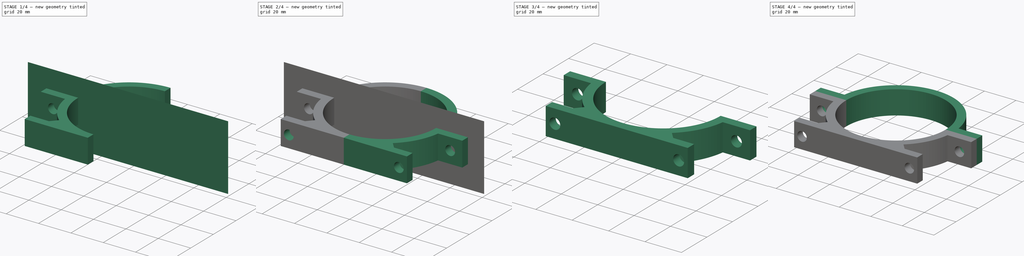
[diagram: build sequence overview — one tinted view per stage of 4, left to right]
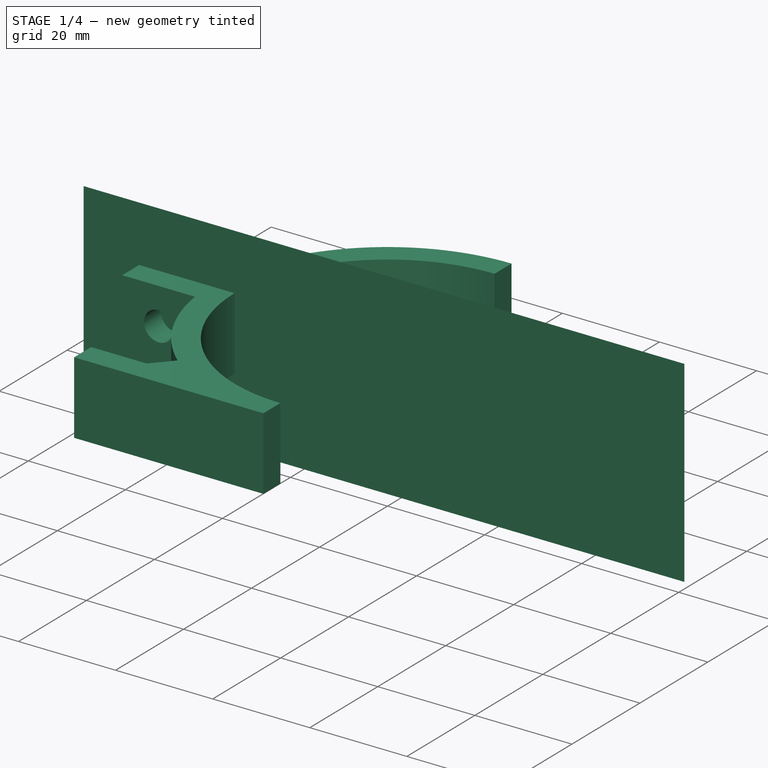
[diagram: stage 1 of 4 — iso view after this stage's code; geometry added in this stage tinted green]
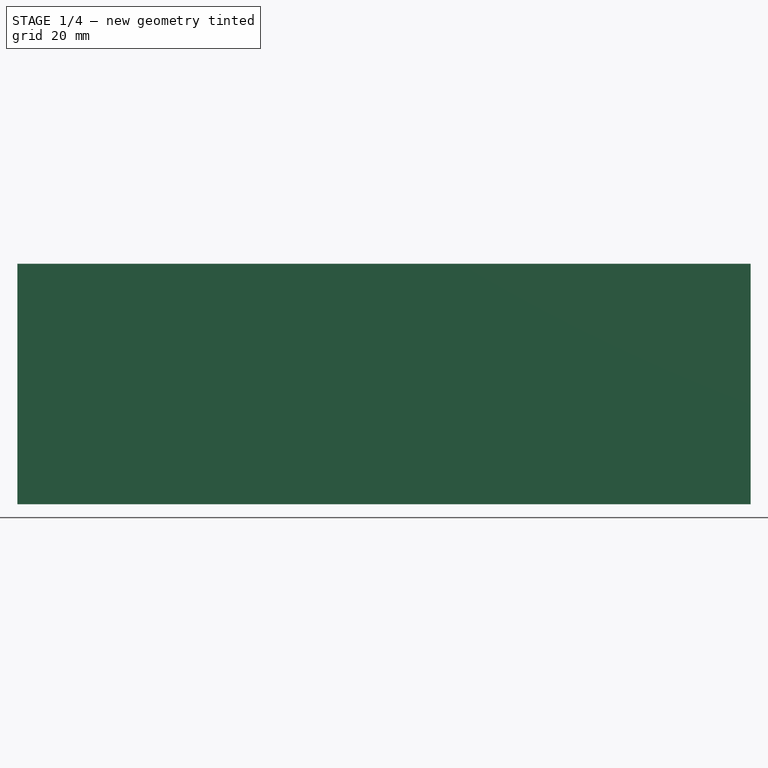
[diagram: stage 1 of 4 — front view after this stage's code; geometry added in this stage tinted green]
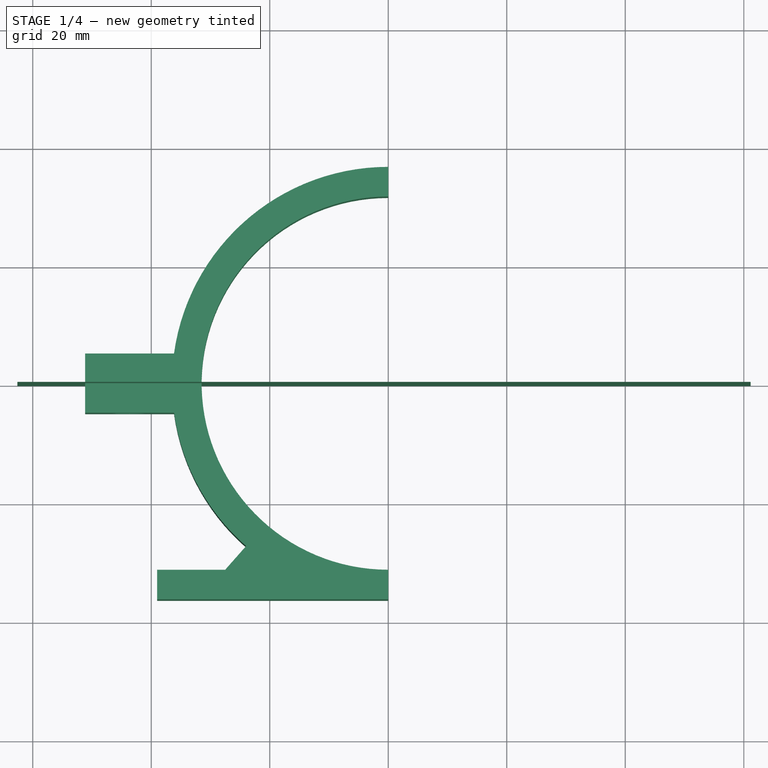
[diagram: stage 1 of 4 — top view after this stage's code; geometry added in this stage tinted green]
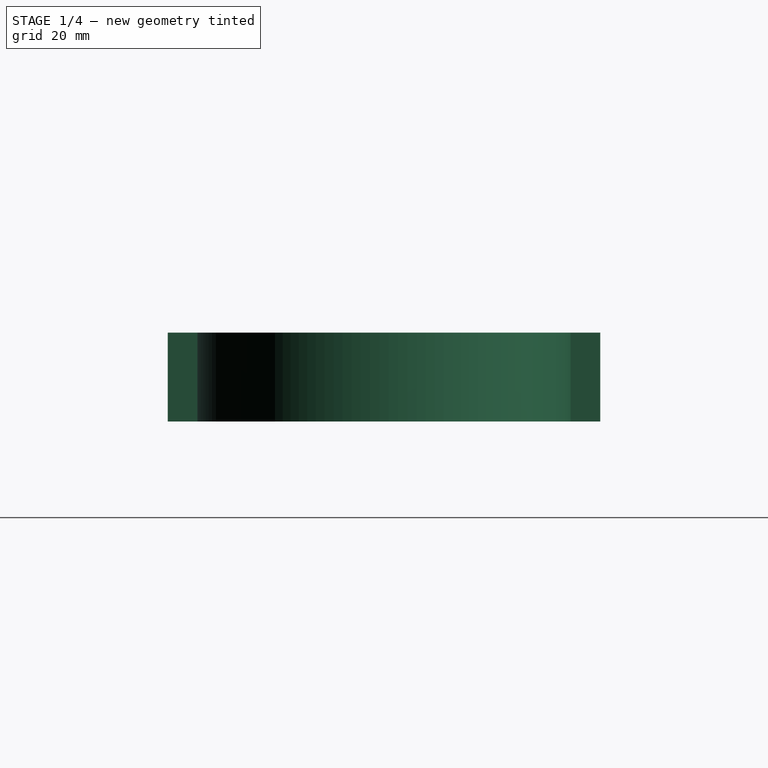
[diagram: stage 1 of 4 — right view after this stage's code; geometry added in this stage tinted green]
FCSTD DOCUMENT  (FreeCAD 0.19R24291 (Git))
Label: Dalekohled_2
License: All rights reserved
LicenseURL: http://en.wikipedia.org/wiki/All_rights_reserved
objects: Sketcher::SketchObject×5, Part::FeaturePython×5, App::Part×2, PartDesign::Pad×2, PartDesign::Hole×2, PartDesign::Body×2, Part::Mirroring×1, PartDesign::ShapeBinder×1, Part::MultiFuse×1, App::DocumentObjectGroup×1
note: 23 computed .brp shape members not serialized (recipe doc carries the construction recipe); baked Part::Feature solids carry a one-line shape summary decoded from their .brp

FEATURE [App::Part] Part  label="Tubus"
  Origin = -> Origin
FEATURE [Sketcher::SketchObject] Sketch  label="ProfilDrzaku"
  FullyConstrained = true
  sketch-geometry (13):
    g0: LineSegment StartX=-51.1559 StartY=5 StartZ=0 EndX=-36.1559 EndY=5 EndZ=0
    g1: LineSegment StartX=-51.1559 StartY=-5 StartZ=0 EndX=-51.1559 EndY=5 EndZ=0
    g2: LineSegment StartX=-5.8e-15 StartY=-36.5 StartZ=0 EndX=-39 EndY=-36.5 EndZ=0
    g3: LineSegment StartX=-39 StartY=-36.5 StartZ=0 EndX=-39 EndY=-31.5 EndZ=0
    g4: LineSegment StartX=-39 StartY=-31.5 StartZ=0 EndX=-27.52 EndY=-31.5 EndZ=0
    g5: LineSegment StartX=-5.8e-15 StartY=-31.5 StartZ=0 EndX=-5.8e-15 EndY=-36.5 EndZ=0
    g6: LineSegment StartX=-36.1559 StartY=-5 StartZ=0 EndX=-51.1559 EndY=-5 EndZ=0
    g7: ArcOfCircle CenterX=0 CenterY=0 CenterZ=0 NormalX=0 NormalY=0 NormalZ=1 AngleXU=0 Radius=36.5 StartAngle=3.27901 EndAngle=3.99509
    g8: LineSegment StartX=-23.9934 StartY=-27.5057 StartZ=0 EndX=-27.52 EndY=-31.5 EndZ=0
    g9: ArcOfCircle CenterX=0 CenterY=0 CenterZ=0 NormalX=0 NormalY=0 NormalZ=1 AngleXU=0 Radius=31.5 StartAngle=1.5708 EndAngle=4.71239
    g10: ArcOfCircle CenterX=0 CenterY=0 CenterZ=0 NormalX=0 NormalY=0 NormalZ=1 AngleXU=0 Radius=36.5 StartAngle=1.5708 EndAngle=3.00417
    g11: LineSegment StartX=1.9e-15 StartY=36.5 StartZ=0 EndX=1.9e-15 EndY=31.5 EndZ=0
    g12: LineSegment StartX=-5.8e-15 StartY=-31.5 StartZ=0 EndX=-5.8e-15 EndY=-36.5 EndZ=0
  constraints (37):
    c: Coincident(g6,g1)
    c: Coincident(g1,g0)
    c: Horizontal(g0)
    c: Coincident(g2,g3)
    c: Coincident(g3,g4)
    c: Coincident(g5,g2)
    c: Horizontal(g2)
    c: Horizontal(g4)
    c: Vertical(g3)
    c: Vertical(g5)
    c: DistanceY(g1,g1) = 10
    c: Perpendicular(g6,g1)
    c: Symmetric(g1,g0,g-1)
    c: DistanceY(g3,g3) = 5
    c: DistanceX(g2,g2) = 39
    c: Coincident(g7,g6)
    c: DistanceX(g6,g6) = 15
    c: Coincident(g4,g8)
    c: Coincident(g7,g8)
    c: Coincident(g9,g7)
    c: Coincident(g9,g5)
    c: Coincident(g10,g7)
    c: Coincident(g10,g0)
    c: Coincident(g11,g10)
    c: Coincident(g11,g9)
    c: Coincident(g12,g5)
    c: Coincident(g12,g2)
    c: Radius(g9) = 31.5
    c: Radius(g10) = 36.5
    c: DistanceY(g5,g5) = 5
    c: Perpendicular(g9,g11)
    c: Perpendicular(g9,g5)
    c: Vertical(g11)
    c: DistanceX(g4,g4) = 11.48
    c: Coincident(g7,g-1)
    c: Radius(g7) = 36.5
    c: DistanceX(g7) = -23.9934
FEATURE [PartDesign::Pad] Pad
  Direction = (1,1,1)
  Length = 15
  Length2 = 100
  Profile = -> Sketch
  Type = 0
FEATURE [Sketcher::SketchObject] Sketch001
  ExternalGeometry = -> [Pad]
  FullyConstrained = true
  MapMode = 5
  Placement = pos=(0,5,0) rot=(0,0.707107,0.707107;3.14159rad)
  Support = -> [Pad]
  sketch-geometry (1):
    g0: Circle CenterX=43.6559 CenterY=7.5 CenterZ=0 NormalX=0 NormalY=0 NormalZ=1 AngleXU=0 Radius=2.1
  constraints (3):
    c: Radius(g0) = 2.1
    c: Distance(g0,g-3) = 7.5
    c: Distance(g0,g-4) = 7.5
FEATURE [PartDesign::Hole] Hole
  BaseFeature = -> Pad
  Depth = 25
  DepthType = 0
  Diameter = 6
  DrillForDepth = false
  DrillPoint = 1
  DrillPointAngle = 118
  HoleCutCountersinkAngle = 90
  HoleCutCustomValues = false
  HoleCutDepth = 0
  HoleCutDiameter = 6.1
  HoleCutType = 0
  ModelActualThread = false
  Profile = -> Sketch001
  Tapered = false
  TaperedAngle = 90
  ThreadAngle = 0
  ThreadClass = 0
  ThreadCutOffInner = 0
  ThreadCutOffOuter = 0
  ThreadDirection = 0
  ThreadFit = 0
  ThreadPitch = 0
  ThreadSize = 0
  ThreadType = 0
  Threaded = false
FEATURE [Sketcher::SketchObject] Sketch004
  FullyConstrained = false
  MapMode = 5
  Placement = pos=(0,0,0) rot=(1,0,0;1.5708rad)
  Support = -> [XZ_Plane003]
  sketch-geometry (4):
    g0: LineSegment StartX=-62.5992 StartY=26.6197 StartZ=0 EndX=61.1613 EndY=26.6197 EndZ=0
    g1: LineSegment StartX=61.1613 StartY=26.6197 StartZ=0 EndX=61.1613 EndY=-13.9769 EndZ=0
    g2: LineSegment StartX=61.1613 StartY=-13.9769 StartZ=0 EndX=-62.5992 EndY=-13.9769 EndZ=0
    g3: LineSegment StartX=-62.5992 StartY=-13.9769 StartZ=0 EndX=-62.5992 EndY=26.6197 EndZ=0
  constraints (8):
    c: Coincident(g0,g1)
    c: Coincident(g1,g2)
    c: Coincident(g2,g3)
    c: Coincident(g3,g0)
    c: Horizontal(g0)
    c: Horizontal(g2)
    c: Vertical(g1)
    c: Vertical(g3)
FEATURE [PartDesign::Pad] Pad001
  Direction = (1,1,1)
  Length = 0.0001
  Length2 = 100
  Placement = pos=(0,0,0) rot=(1,0,0;1.5708rad)
  Profile = -> Sketch004
  Type = 0
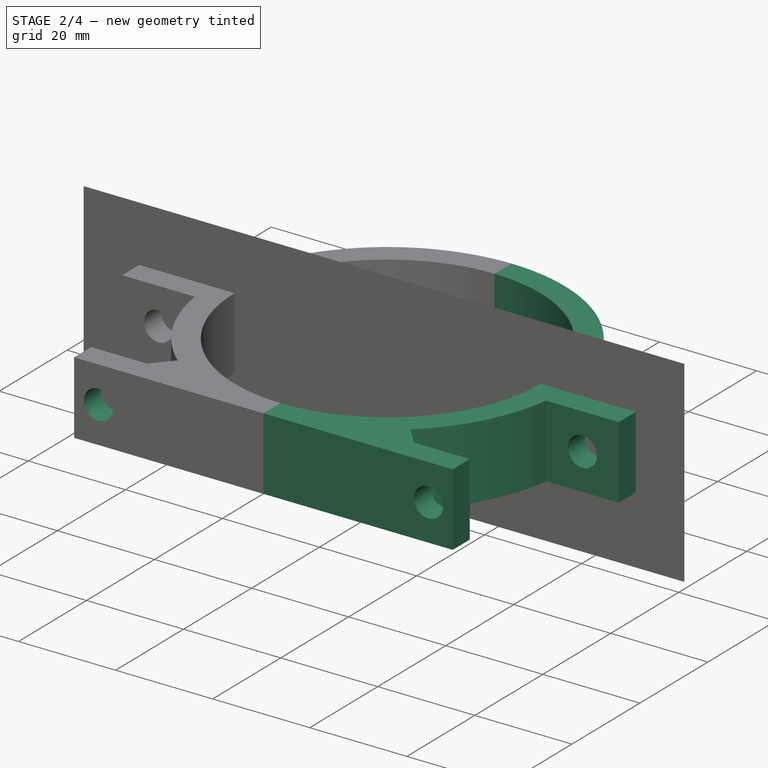
[diagram: stage 2 of 4 — iso view after this stage's code; geometry added in this stage tinted green]
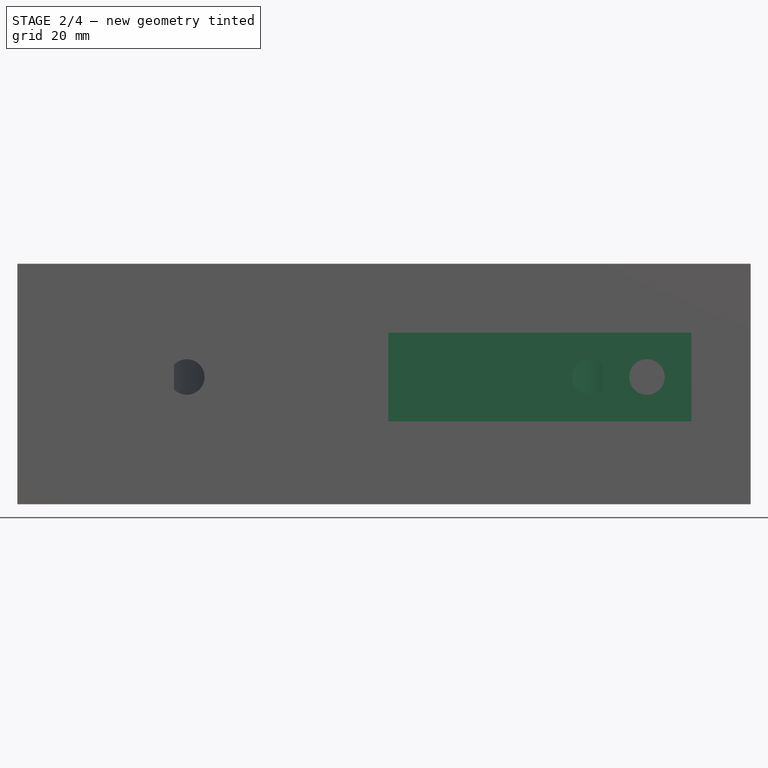
[diagram: stage 2 of 4 — front view after this stage's code; geometry added in this stage tinted green]
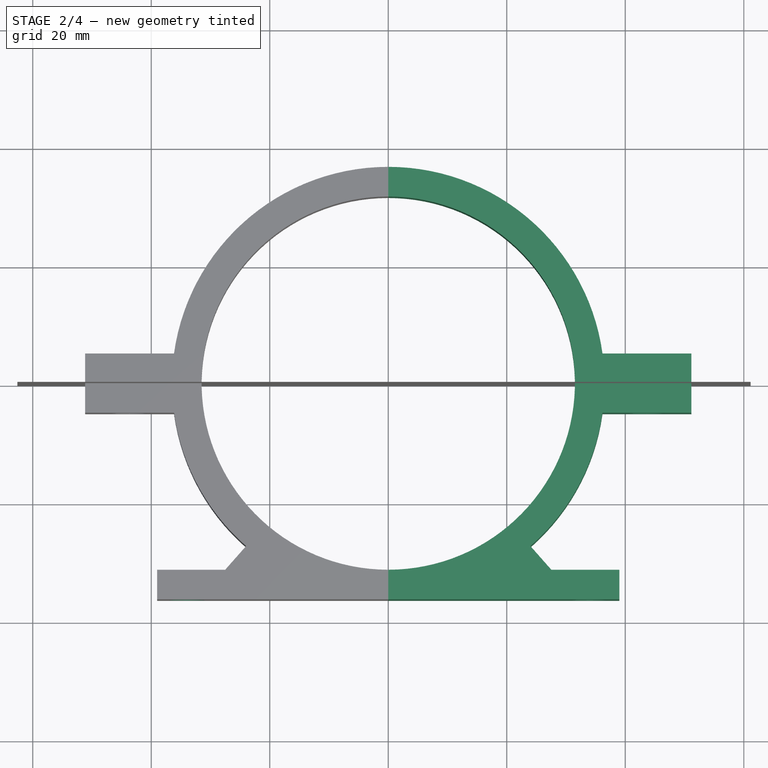
[diagram: stage 2 of 4 — top view after this stage's code; geometry added in this stage tinted green]
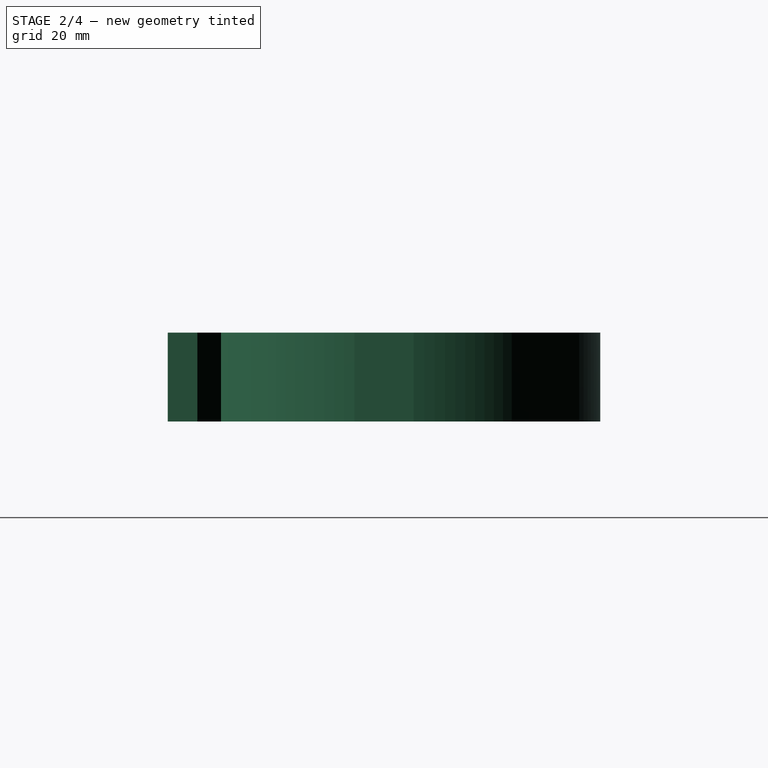
[diagram: stage 2 of 4 — right view after this stage's code; geometry added in this stage tinted green]
FEATURE [Sketcher::SketchObject] Sketch002
  ExternalGeometry = -> [Hole]
  FullyConstrained = true
  MapMode = 5
  Placement = pos=(0,-36.5,0) rot=(1,0,0;1.5708rad)
  Support = -> [Hole]
  sketch-geometry (1):
    g0: Circle CenterX=-34 CenterY=7.5 CenterZ=0 NormalX=0 NormalY=0 NormalZ=1 AngleXU=0 Radius=2.2
  constraints (3):
    c: Radius(g0) = 2.2
    c: Distance(g0,g-3) = 7.5
    c: Distance(g0,g-4) = 5
FEATURE [PartDesign::Hole] Hole001
  BaseFeature = -> Hole
  Depth = 17
  DepthType = 0
  Diameter = 6
  DrillForDepth = false
  DrillPoint = 1
  DrillPointAngle = 118
  HoleCutCountersinkAngle = 90
  HoleCutCustomValues = false
  HoleCutDepth = 0
  HoleCutDiameter = 6.1
  HoleCutType = 0
  ModelActualThread = false
  Profile = -> Sketch002
  Tapered = false
  TaperedAngle = 90
  ThreadAngle = 0
  ThreadClass = 0
  ThreadCutOffInner = 0
  ThreadCutOffOuter = 0
  ThreadDirection = 0
  ThreadFit = 0
  ThreadPitch = 0
  ThreadSize = 0
  ThreadType = 0
  Threaded = false
FEATURE [Part::Mirroring] Part__Mirroring  label="Hole001 (Mirror #1)"
  Base = (0,0,0)
  Normal = (1,0,0)
  Source = -> Hole001
FEATURE [Sketcher::SketchObject] Sketch003
  FullyConstrained = true
  MapMode = 5
  Placement = pos=(0,5,0) rot=(0,0.707107,0.707107;3.14159rad)
FEATURE [PartDesign::ShapeBinder] CopyFusion
  TraceSupport = false
FEATURE [PartDesign::Body] Body
  Group = -> [Sketch,Pad,Sketch001,Hole,Sketch002,Hole001,Sketch003,CopyFusion]
  Origin = -> Origin002
  Tip = -> Hole001
FEATURE [App::Part] Part001  label="Holder"
  Group = -> [Body]
  Origin = -> Origin001
FEATURE [Part::MultiFuse] Fusion
  Shapes = -> [Part__Mirroring,Part001]
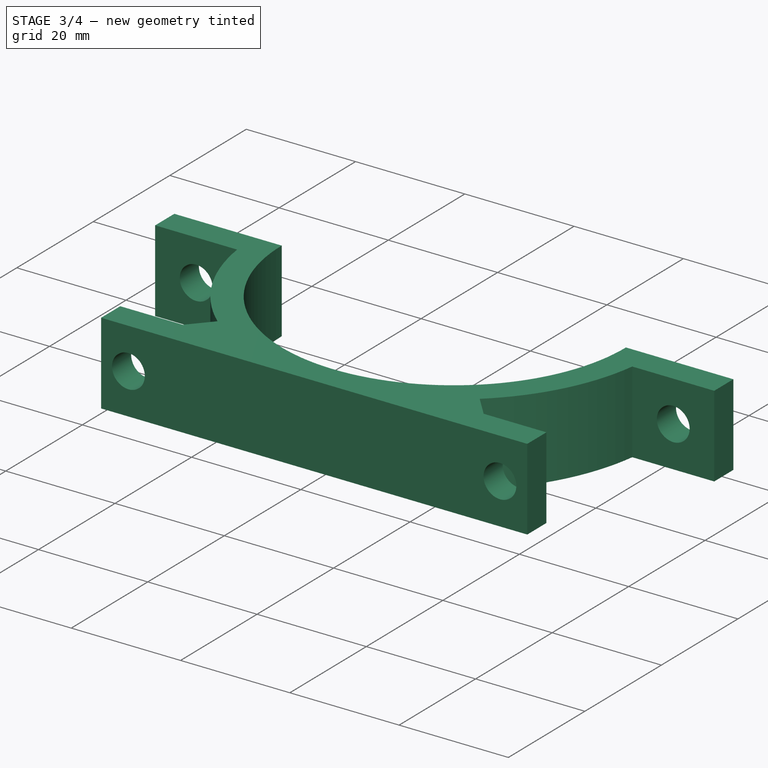
[diagram: stage 3 of 4 — iso view after this stage's code; geometry added in this stage tinted green]
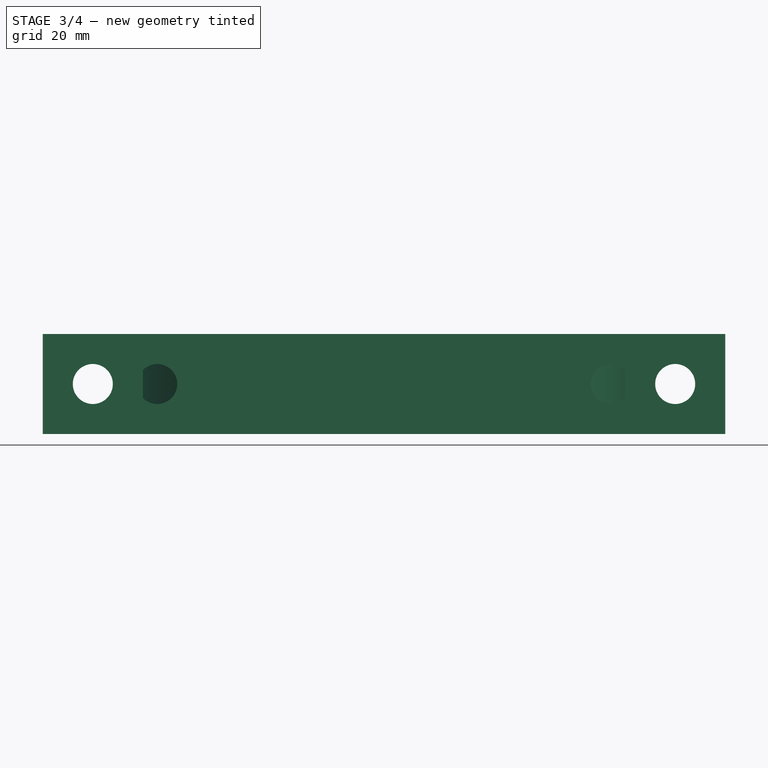
[diagram: stage 3 of 4 — front view after this stage's code; geometry added in this stage tinted green]
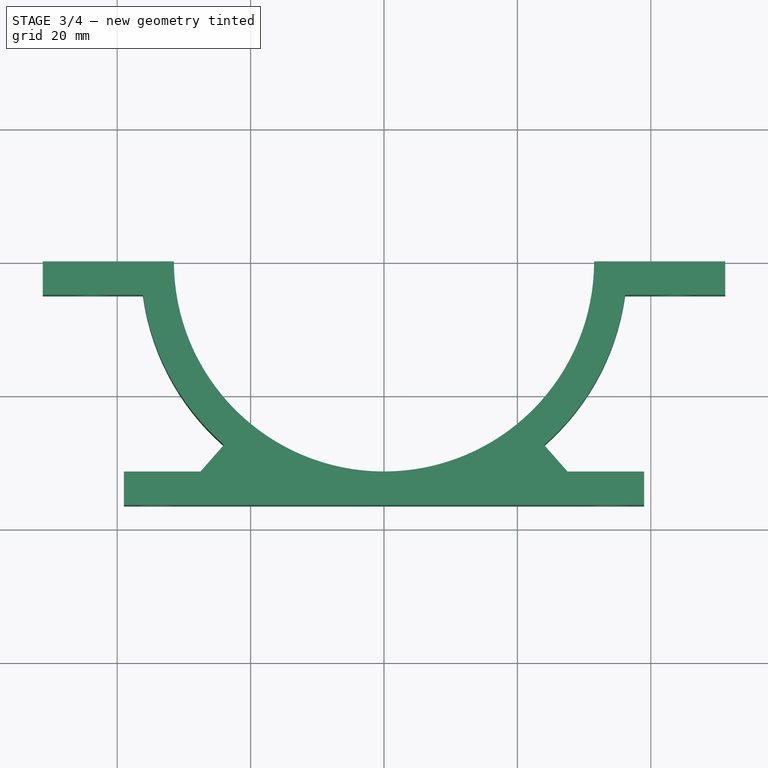
[diagram: stage 3 of 4 — top view after this stage's code; geometry added in this stage tinted green]
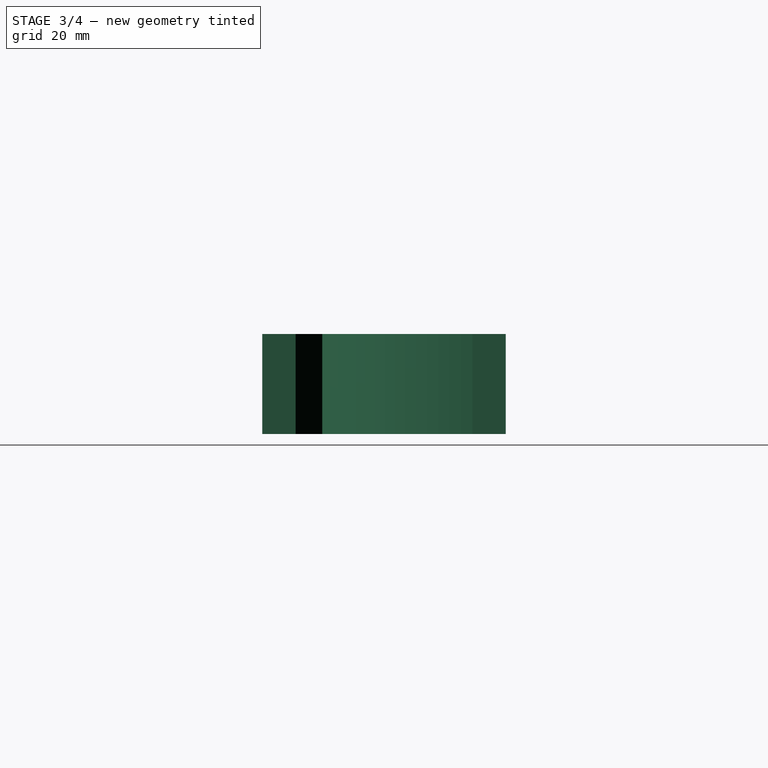
[diagram: stage 3 of 4 — right view after this stage's code; geometry added in this stage tinted green]
FEATURE [PartDesign::Body] Body001  label="RezaciRovina"
  Group = -> [Sketch004,Pad001]
  Origin = -> Origin003
  Tip = -> Pad001
FEATURE [Part::FeaturePython] Slice  # WARN: FeaturePython — macro-defined, semantics opaque (R4)
  Base = -> Fusion
  Mode = 1
  Tolerance = 0
  Tools = -> [Body001]
FEATURE [Part::FeaturePython] Slice_child3  label="SpodniDil"  # WARN: FeaturePython — macro-defined, semantics opaque (R4)
  Base = -> Slice
  FilterType = 1
  Invert = false
  OverrideMaxVal = 0
  WindowFrom = 80
  WindowTo = 100
  items = 3
FEATURE [App::DocumentObjectGroup] GrExplode_Slice  label="Exploded Slice"
  Group = -> [Slice_child0,Slice_child1,Slice_child2,Slice_child3]
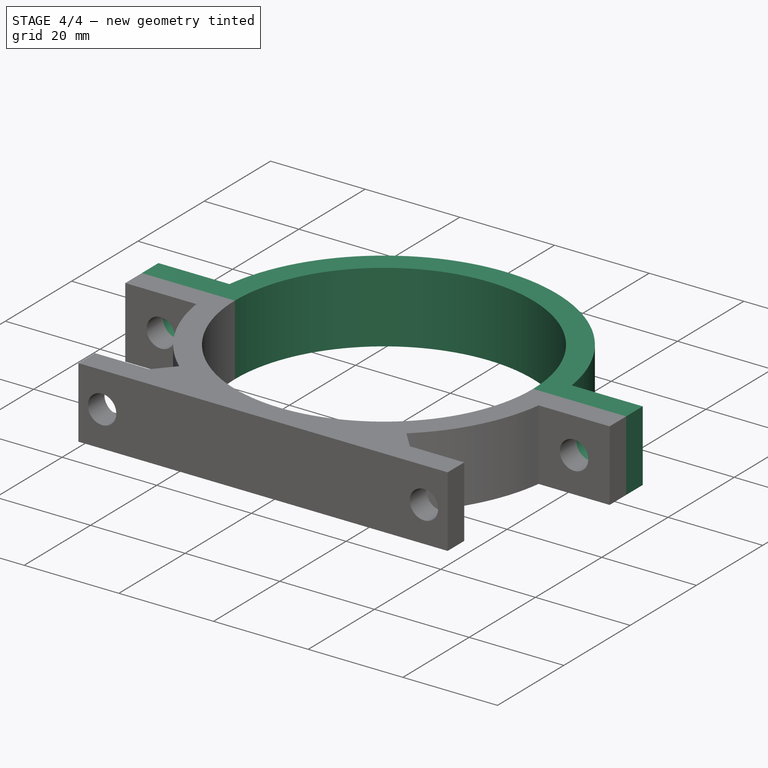
[diagram: stage 4 of 4 — iso view after this stage's code; geometry added in this stage tinted green]
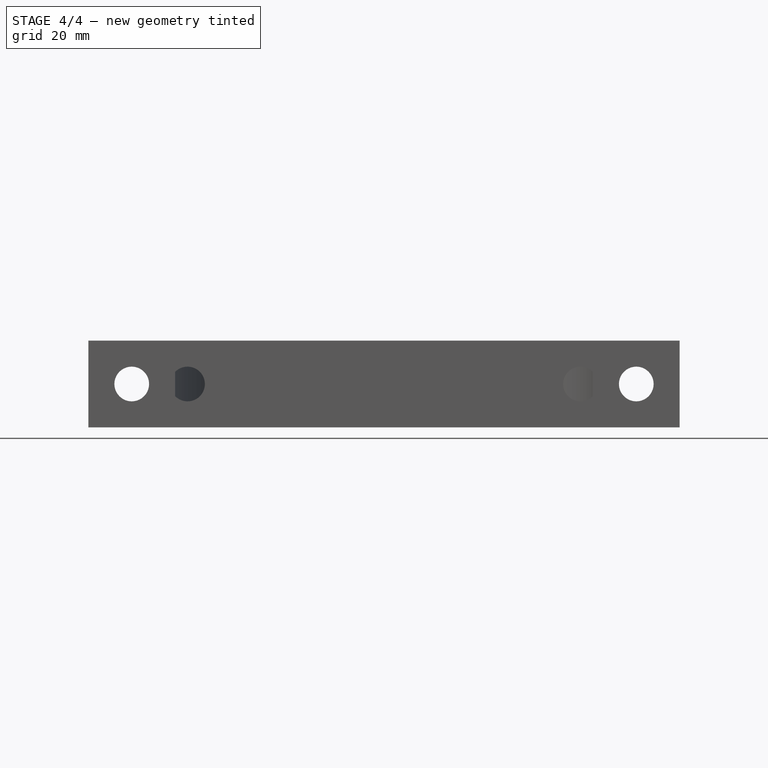
[diagram: stage 4 of 4 — front view after this stage's code; geometry added in this stage tinted green]
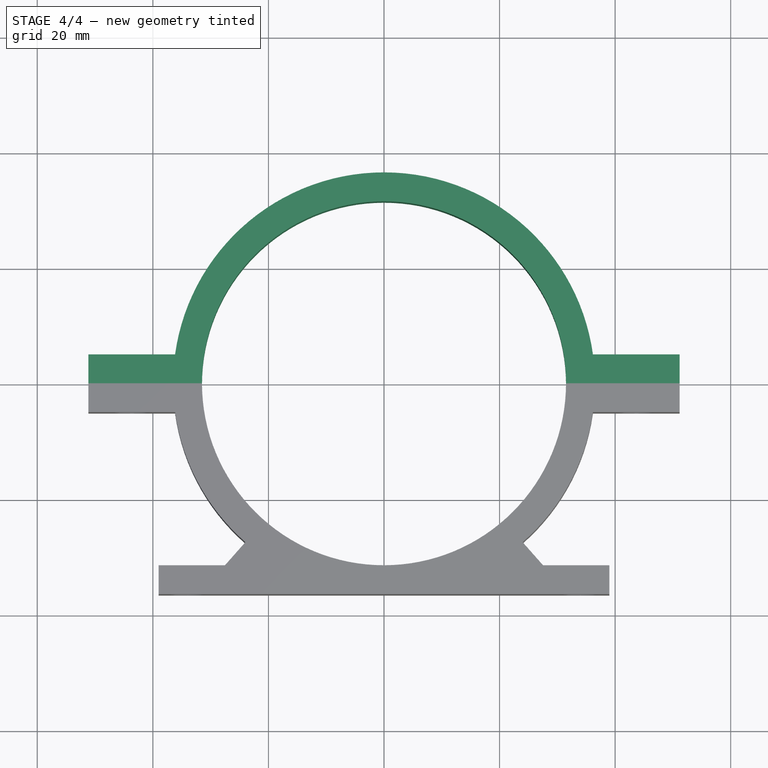
[diagram: stage 4 of 4 — top view after this stage's code; geometry added in this stage tinted green]
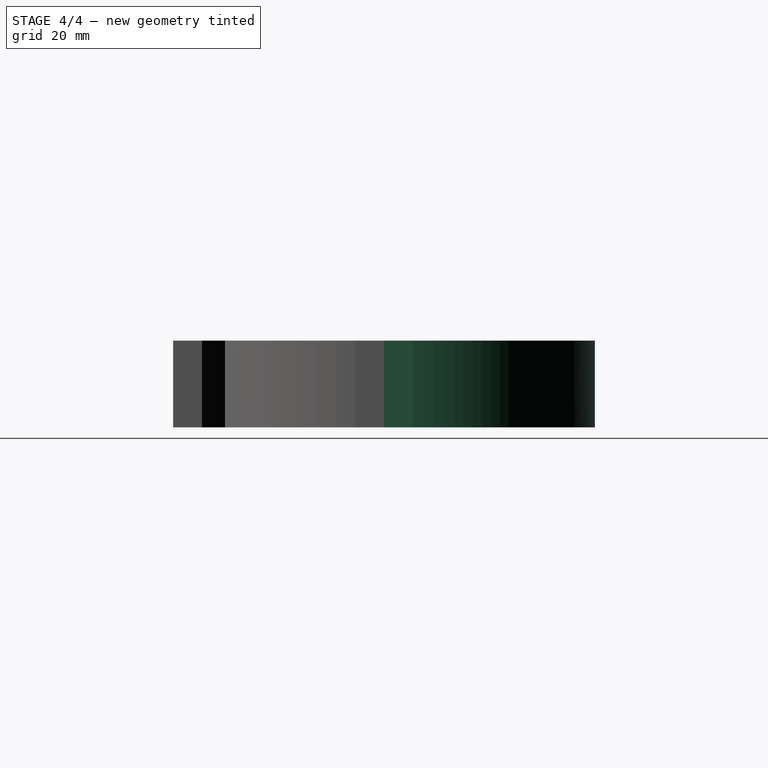
[diagram: stage 4 of 4 — right view after this stage's code; geometry added in this stage tinted green]
FEATURE [Part::FeaturePython] Slice_child0  label="HorniDil"  # WARN: FeaturePython — macro-defined, semantics opaque (R4)
  Base = -> Slice
  FilterType = 1
  Invert = false
  OverrideMaxVal = 0
  WindowFrom = 80
  WindowTo = 100
  items = 0
FEATURE [Part::FeaturePython] Slice_child1  label="Slice.1"  # WARN: FeaturePython — macro-defined, semantics opaque (R4)
  Base = -> Slice
  FilterType = 1
  Invert = false
  OverrideMaxVal = 0
  WindowFrom = 80
  WindowTo = 100
  items = 1
FEATURE [Part::FeaturePython] Slice_child2  label="Slice.2"  # WARN: FeaturePython — macro-defined, semantics opaque (R4)
  Base = -> Slice
  FilterType = 1
  Invert = false
  OverrideMaxVal = 0
  WindowFrom = 80
  WindowTo = 100
  items = 2
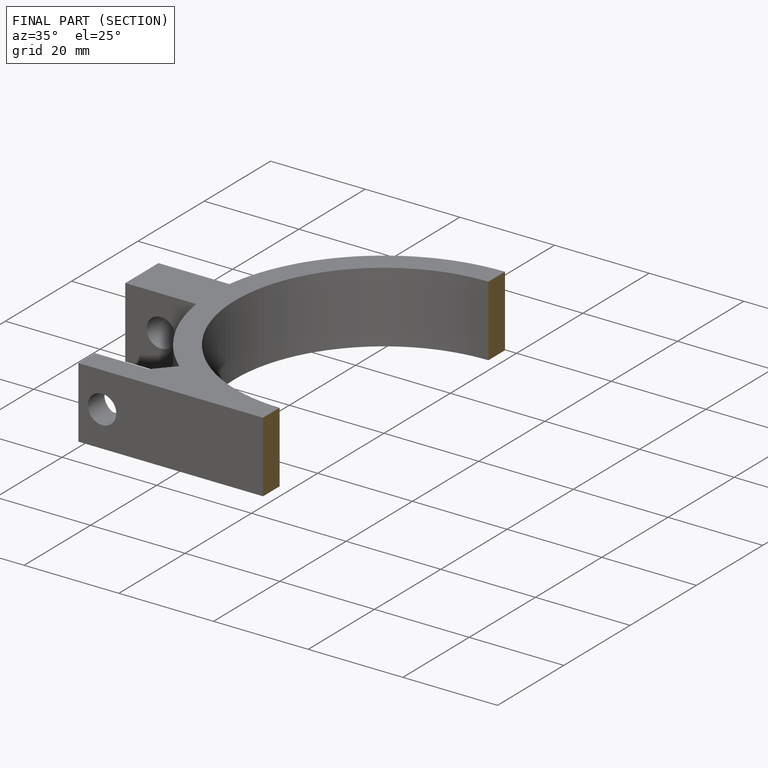
[diagram: finished part — half-section view (interior)]
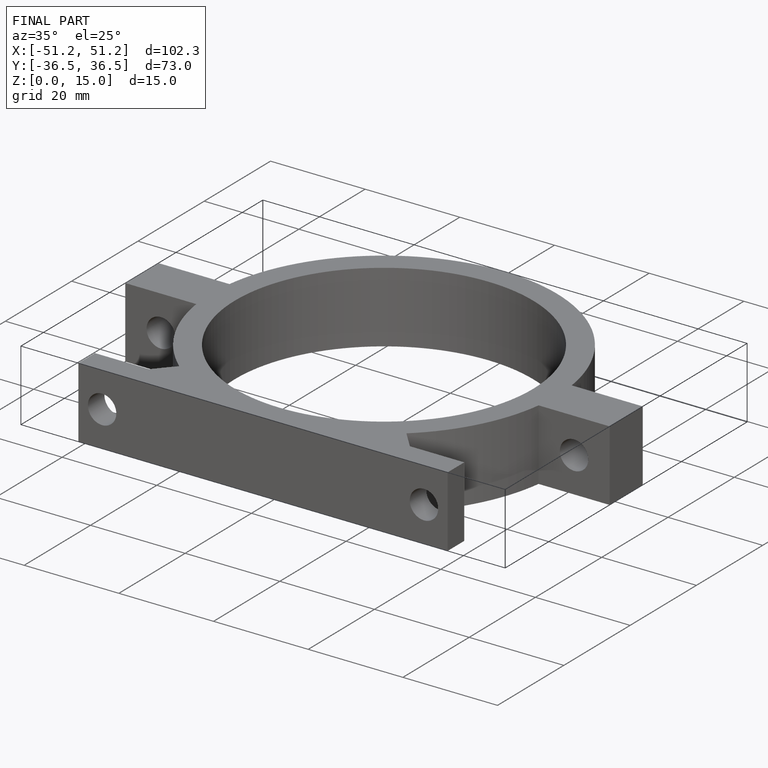
[diagram: finished part — iso view with bounding-box wireframe]
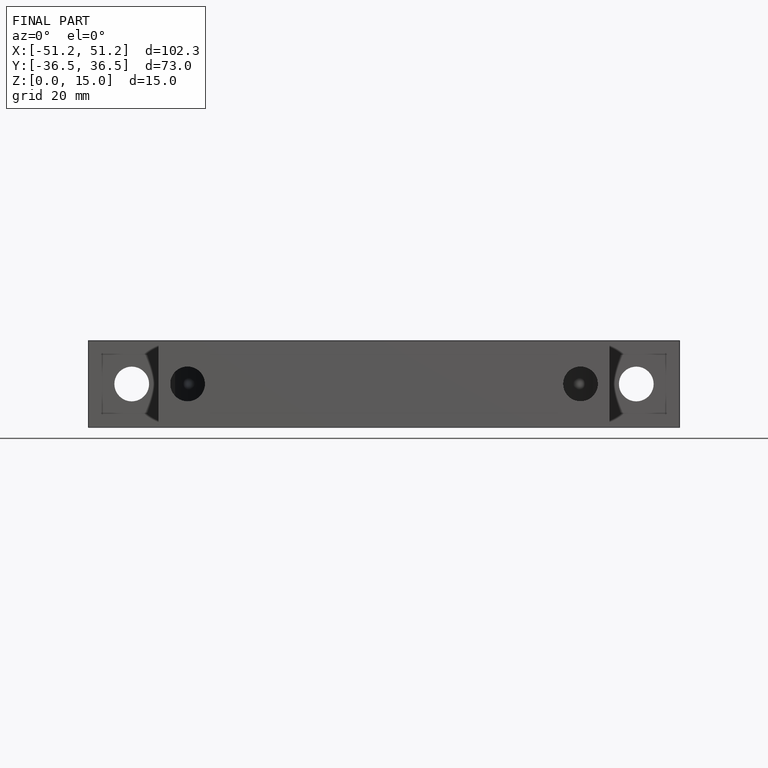
[diagram: finished part — front view with bounding-box wireframe]
